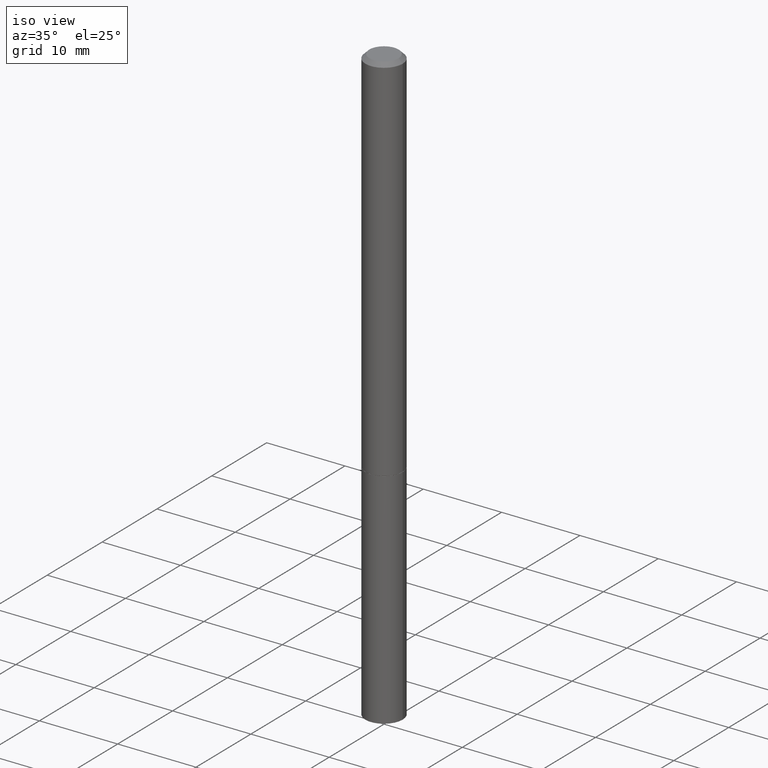
[diagram: clean part render]
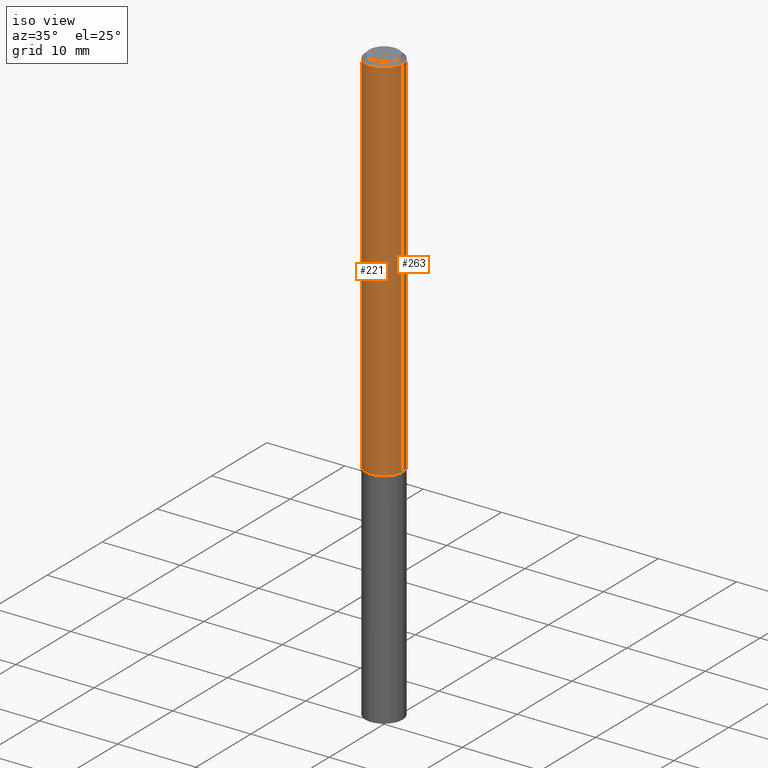
[diagram: same view with one multi-face feature highlighted, each face labeled with its STEP entity id]
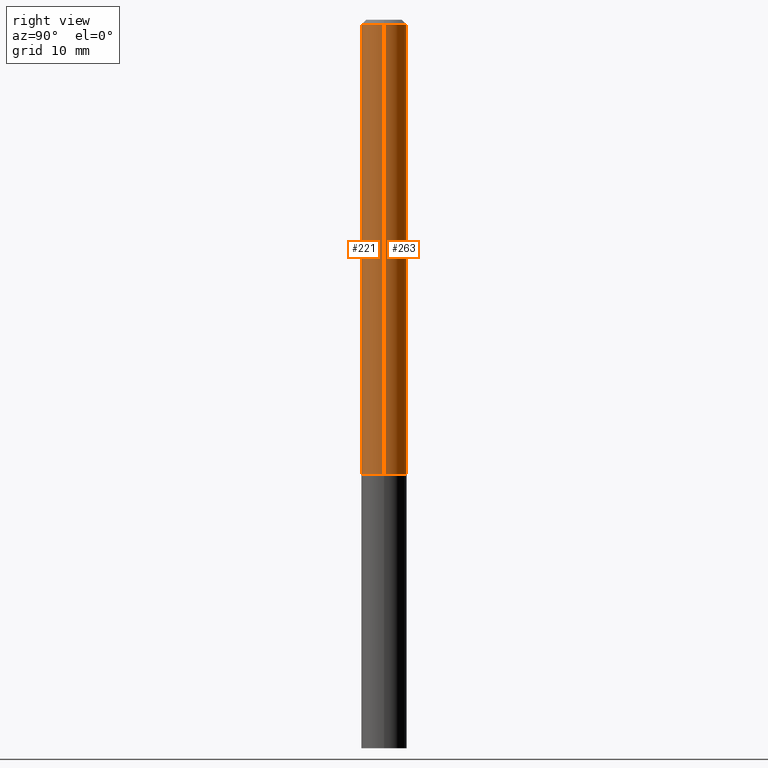
[diagram: same view with one multi-face feature highlighted, each face labeled with its STEP entity id]
A machine part, iso view. The highlighted faces form ONE feature: a constant-radius fillet chain: 2 tangent blend faces with common blend radius 2.3812 mm. The faces share edges in the B-rep.
A second angle (right view) of the same feature is appended — it is thin or edge-on in the first view.
Their STEP definitions:
[1] entity #263 (Cylinder):
#3 = CARTESIAN_POINT ( 'NONE',  ( 0.000000000000000000, 0.000000000000000000, 0.000000000000000000 ) ) ;
#28 = DIRECTION ( 'NONE',  ( -2.445468806185136597E-29, 3.491481338843145583E-15, 1.000000000000000000 ) ) ;
#42 = ORIENTED_EDGE ( 'NONE', *, *, #144, .F. ) ;
#60 = EDGE_CURVE ( 'NONE', #327, #332, #248, .T. ) ;
#73 = DIRECTION ( 'NONE',  ( -2.445468806185136597E-29, 3.491481338843145583E-15, 1.000000000000000000 ) ) ;
#79 = CARTESIAN_POINT ( 'NONE',  ( -0.09375000000000001388, -2.640299013109360447E-15, -1.874000000000000110 ) ) ;
#97 = AXIS2_PLACEMENT_3D ( 'NONE', #3, #28, #344 ) ;
#113 = CIRCLE ( 'NONE', #316, 0.09375000000000001388 ) ;
#115 = AXIS2_PLACEMENT_3D ( 'NONE', #302, #73, #155 ) ;
#116 = CARTESIAN_POINT ( 'NONE',  ( -0.09374999999999988898, 6.661338147750931354E-16, -4.611501647113968390E-30 ) ) ;
#127 = ORIENTED_EDGE ( 'NONE', *, *, #207, .T. ) ;
#144 = EDGE_CURVE ( 'NONE', #206, #327, #200, .T. ) ;
#146 = CYLINDRICAL_SURFACE ( 'NONE', #97, 0.09374999999999988898 ) ;
#150 = ORIENTED_EDGE ( 'NONE', *, *, #365, .T. ) ;
#155 = DIRECTION ( 'NONE',  ( 1.000000000000000000, -6.982962677686266711E-15, 0.000000000000000000 ) ) ;
#169 = CARTESIAN_POINT ( 'NONE',  ( -0.09374999999999979183, 5.848231242562231212E-16, -0.02000000000000000736 ) ) ;
#189 = VECTOR ( 'NONE', #197, 39.37007874015748143 ) ;
#197 = DIRECTION ( 'NONE',  ( -2.445468806185136877E-29, 3.491481338843145188E-15, 1.000000000000000000 ) ) ;
#200 = LINE ( 'NONE', #293, #189 ) ;
#206 = VERTEX_POINT ( 'NONE', #241 ) ;
#207 = EDGE_CURVE ( 'NONE', #206, #218, #113, .T. ) ;
#215 = CARTESIAN_POINT ( 'NONE',  ( 4.582808542790945516E-29, -6.543036028992054911E-15, -1.874000000000000110 ) ) ;
#218 = VERTEX_POINT ( 'NONE', #79 ) ;
#224 = DIRECTION ( 'NONE',  ( -2.445468806185136877E-29, 3.491481338843145188E-15, 1.000000000000000000 ) ) ;
#226 = ORIENTED_EDGE ( 'NONE', *, *, #60, .F. ) ;
#241 = CARTESIAN_POINT ( 'NONE',  ( 0.09375000000000001388, -7.197688780025142415E-15, -1.874000000000000110 ) ) ;
#248 = CIRCLE ( 'NONE', #115, 0.09374999999999979183 ) ;
#254 = LINE ( 'NONE', #116, #349 ) ;
#263 = ADVANCED_FACE ( 'NONE', ( #311 ), #146, .T. ) ;
#286 = EDGE_LOOP ( 'NONE', ( #127, #150, #226, #42 ) ) ;
#293 = CARTESIAN_POINT ( 'NONE',  ( 0.09374999999999988898, -6.546527510330866166E-16, 4.571415727308684201E-30 ) ) ;
#302 = CARTESIAN_POINT ( 'NONE',  ( 4.890937612370274910E-31, -6.982962677686295307E-17, -0.02000000000000000736 ) ) ;
#311 = FACE_OUTER_BOUND ( 'NONE', #286, .T. ) ;
#314 = CARTESIAN_POINT ( 'NONE',  ( 0.09374999999999979183, -7.130013140679426072E-16, -0.02000000000000000736 ) ) ;
#316 = AXIS2_PLACEMENT_3D ( 'NONE', #215, #336, #339 ) ;
#327 = VERTEX_POINT ( 'NONE', #314 ) ;
#332 = VERTEX_POINT ( 'NONE', #169 ) ;
#336 = DIRECTION ( 'NONE',  ( -2.445468806185136597E-29, 3.491481338843145583E-15, 1.000000000000000000 ) ) ;
#339 = DIRECTION ( 'NONE',  ( 1.000000000000000000, -6.982962677686261189E-15, 0.000000000000000000 ) ) ;
#344 = DIRECTION ( 'NONE',  ( 1.000000000000000000, -6.982962677686265133E-15, 4.876176775795935793E-29 ) ) ;
#349 = VECTOR ( 'NONE', #224, 39.37007874015748143 ) ;
#365 = EDGE_CURVE ( 'NONE', #218, #332, #254, .T. ) ;
[2] entity #221 (Cylinder):
#26 = CARTESIAN_POINT ( 'NONE',  ( 4.582808542790945516E-29, -6.543036028992054911E-15, -1.874000000000000110 ) ) ;
#48 = DIRECTION ( 'NONE',  ( -2.445468806185136597E-29, 3.491481338843145583E-15, 1.000000000000000000 ) ) ;
#70 = AXIS2_PLACEMENT_3D ( 'NONE', #172, #205, #139 ) ;
#74 = CIRCLE ( 'NONE', #270, 0.09375000000000001388 ) ;
#79 = CARTESIAN_POINT ( 'NONE',  ( -0.09375000000000001388, -2.640299013109360447E-15, -1.874000000000000110 ) ) ;
#89 = ORIENTED_EDGE ( 'NONE', *, *, #144, .T. ) ;
#92 = ORIENTED_EDGE ( 'NONE', *, *, #233, .T. ) ;
#93 = EDGE_LOOP ( 'NONE', ( #261, #92, #89, #347 ) ) ;
#106 = DIRECTION ( 'NONE',  ( 1.000000000000000000, -6.982962677686261189E-15, 0.000000000000000000 ) ) ;
#116 = CARTESIAN_POINT ( 'NONE',  ( -0.09374999999999988898, 6.661338147750931354E-16, -4.611501647113968390E-30 ) ) ;
#135 = EDGE_CURVE ( 'NONE', #332, #327, #234, .T. ) ;
#139 = DIRECTION ( 'NONE',  ( 1.000000000000000000, -6.982962677686266711E-15, 0.000000000000000000 ) ) ;
#140 = AXIS2_PLACEMENT_3D ( 'NONE', #353, #48, #331 ) ;
#142 = DIRECTION ( 'NONE',  ( -2.445468806185136597E-29, 3.491481338843145583E-15, 1.000000000000000000 ) ) ;
#144 = EDGE_CURVE ( 'NONE', #206, #327, #200, .T. ) ;
#169 = CARTESIAN_POINT ( 'NONE',  ( -0.09374999999999979183, 5.848231242562231212E-16, -0.02000000000000000736 ) ) ;
#172 = CARTESIAN_POINT ( 'NONE',  ( 4.890937612370274910E-31, -6.982962677686295307E-17, -0.02000000000000000736 ) ) ;
#189 = VECTOR ( 'NONE', #197, 39.37007874015748143 ) ;
#197 = DIRECTION ( 'NONE',  ( -2.445468806185136877E-29, 3.491481338843145188E-15, 1.000000000000000000 ) ) ;
#200 = LINE ( 'NONE', #293, #189 ) ;
#205 = DIRECTION ( 'NONE',  ( -2.445468806185136597E-29, 3.491481338843145583E-15, 1.000000000000000000 ) ) ;
#206 = VERTEX_POINT ( 'NONE', #241 ) ;
#218 = VERTEX_POINT ( 'NONE', #79 ) ;
#221 = ADVANCED_FACE ( 'NONE', ( #245 ), #231, .T. ) ;
#224 = DIRECTION ( 'NONE',  ( -2.445468806185136877E-29, 3.491481338843145188E-15, 1.000000000000000000 ) ) ;
#231 = CYLINDRICAL_SURFACE ( 'NONE', #140, 0.09374999999999988898 ) ;
#233 = EDGE_CURVE ( 'NONE', #218, #206, #74, .T. ) ;
#234 = CIRCLE ( 'NONE', #70, 0.09374999999999979183 ) ;
#241 = CARTESIAN_POINT ( 'NONE',  ( 0.09375000000000001388, -7.197688780025142415E-15, -1.874000000000000110 ) ) ;
#245 = FACE_OUTER_BOUND ( 'NONE', #93, .T. ) ;
#254 = LINE ( 'NONE', #116, #349 ) ;
#261 = ORIENTED_EDGE ( 'NONE', *, *, #365, .F. ) ;
#270 = AXIS2_PLACEMENT_3D ( 'NONE', #26, #142, #106 ) ;
#293 = CARTESIAN_POINT ( 'NONE',  ( 0.09374999999999988898, -6.546527510330866166E-16, 4.571415727308684201E-30 ) ) ;
#314 = CARTESIAN_POINT ( 'NONE',  ( 0.09374999999999979183, -7.130013140679426072E-16, -0.02000000000000000736 ) ) ;
#327 = VERTEX_POINT ( 'NONE', #314 ) ;
#331 = DIRECTION ( 'NONE',  ( 1.000000000000000000, -6.982962677686265133E-15, 4.876176775795935793E-29 ) ) ;
#332 = VERTEX_POINT ( 'NONE', #169 ) ;
#347 = ORIENTED_EDGE ( 'NONE', *, *, #135, .F. ) ;
#349 = VECTOR ( 'NONE', #224, 39.37007874015748143 ) ;
#353 = CARTESIAN_POINT ( 'NONE',  ( 0.000000000000000000, 0.000000000000000000, 0.000000000000000000 ) ) ;
#365 = EDGE_CURVE ( 'NONE', #218, #332, #254, .T. ) ;